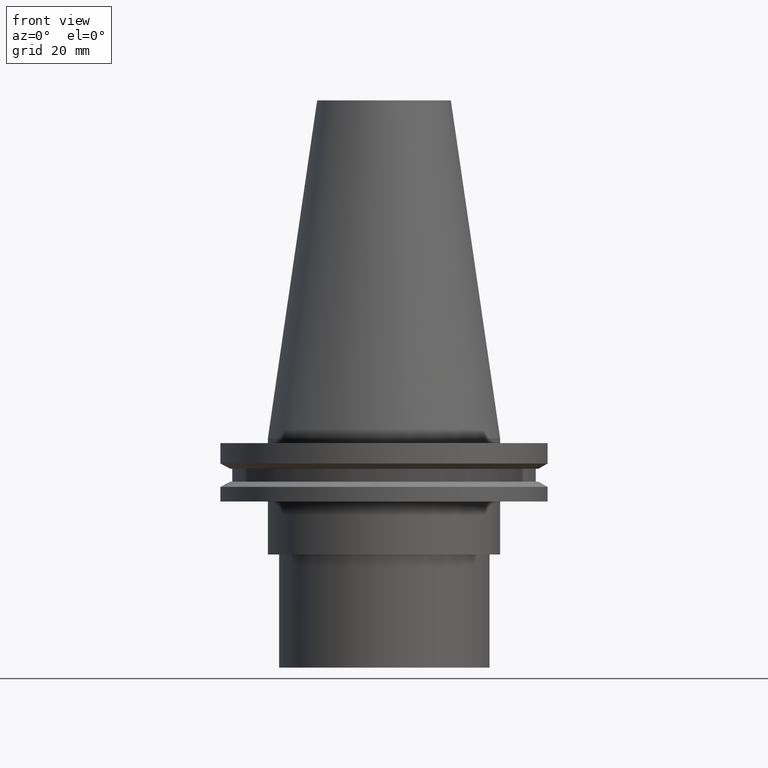
[diagram: clean part render]
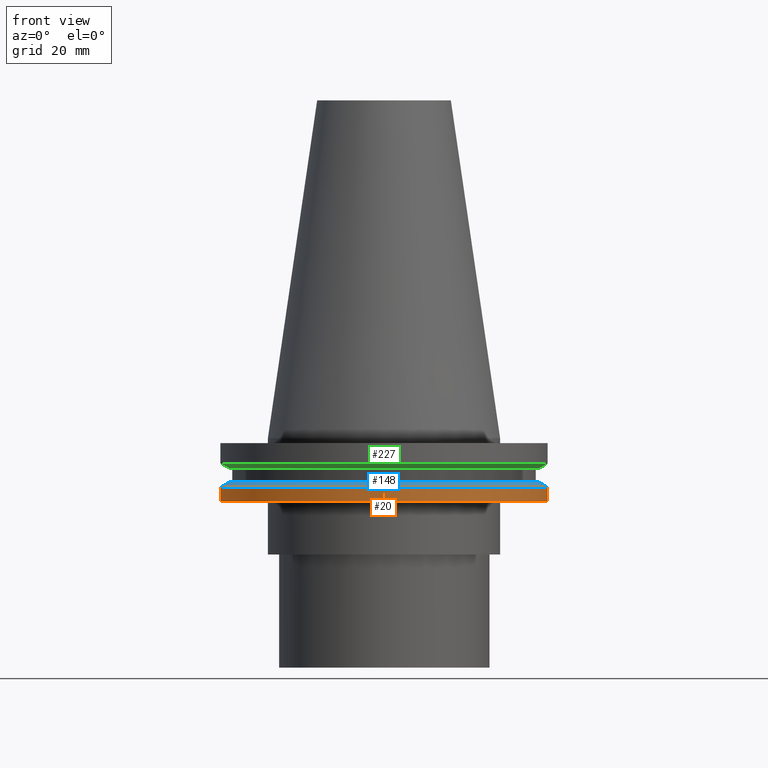
[diagram: same view with three faces highlighted in distinct colors, each labeled with its STEP entity id]
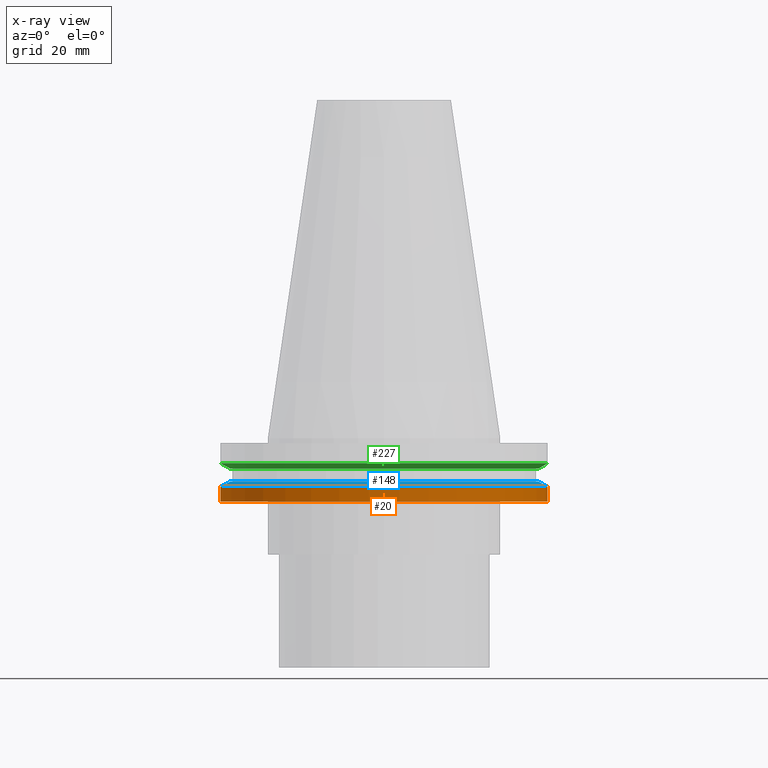
[diagram: x-ray of the same camera — body ghosted, the three highlighted faces saturated]
A machine part, front view with three faces highlighted in distinct colors.
The next image is the same camera in x-ray (body ghosted, the three faces saturated) — at least one of them is partly hidden behind the body in this view.
Their STEP definitions:

[orange] entity #20 — the highlighted cylindrical surface (bore or boss wall) has radius 49.215 mm, axis along (-0, -0, 1).
#18 = CARTESIAN_POINT ( 'NONE',  ( 0.000000000000000000, 0.000000000000000000, -14.65761014474876944 ) ) ;
#19 = DIRECTION ( 'NONE',  ( -0.000000000000000000, -0.000000000000000000, 1.000000000000000000 ) ) ;
#20 = ADVANCED_FACE ( 'NONE', ( #322, #54 ), #301, .T. ) ;
#35 = EDGE_LOOP ( 'NONE', ( #130 ) ) ;
#52 = CIRCLE ( 'NONE', #59, 49.21499999999998920 ) ;
#54 = FACE_OUTER_BOUND ( 'NONE', #166, .T. ) ;
#59 = AXIS2_PLACEMENT_3D ( 'NONE', #213, #332, #303 ) ;
#64 = EDGE_CURVE ( 'NONE', #182, #182, #133, .T. ) ;
#86 = DIRECTION ( 'NONE',  ( -0.000000000000000000, -0.000000000000000000, 1.000000000000000000 ) ) ;
#130 = ORIENTED_EDGE ( 'NONE', *, *, #64, .F. ) ;
#133 = CIRCLE ( 'NONE', #304, 49.21499999999998920 ) ;
#166 = EDGE_LOOP ( 'NONE', ( #221 ) ) ;
#173 = DIRECTION ( 'NONE',  ( 1.000000000000000000, 0.000000000000000000, 0.000000000000000000 ) ) ;
#178 = DIRECTION ( 'NONE',  ( 1.000000000000000000, 0.000000000000000000, 0.000000000000000000 ) ) ;
#182 = VERTEX_POINT ( 'NONE', #366 ) ;
#204 = CARTESIAN_POINT ( 'NONE',  ( 49.21499999999998920, 0.000000000000000000, -19.04999999999999716 ) ) ;
#213 = CARTESIAN_POINT ( 'NONE',  ( 0.000000000000000000, 0.000000000000000000, -19.04999999999999716 ) ) ;
#221 = ORIENTED_EDGE ( 'NONE', *, *, #377, .T. ) ;
#301 = CYLINDRICAL_SURFACE ( 'NONE', #382, 49.21499999999998920 ) ;
#303 = DIRECTION ( 'NONE',  ( 1.000000000000000000, 0.000000000000000000, 0.000000000000000000 ) ) ;
#304 = AXIS2_PLACEMENT_3D ( 'NONE', #18, #19, #173 ) ;
#322 = FACE_OUTER_BOUND ( 'NONE', #35, .T. ) ;
#332 = DIRECTION ( 'NONE',  ( -0.000000000000000000, -0.000000000000000000, 1.000000000000000000 ) ) ;
#354 = CARTESIAN_POINT ( 'NONE',  ( 0.000000000000000000, 0.000000000000000000, 101.5999999999999943 ) ) ;
#361 = VERTEX_POINT ( 'NONE', #204 ) ;
#366 = CARTESIAN_POINT ( 'NONE',  ( 49.21499999999998920, 0.000000000000000000, -14.65761014474876944 ) ) ;
#377 = EDGE_CURVE ( 'NONE', #361, #361, #52, .T. ) ;
#382 = AXIS2_PLACEMENT_3D ( 'NONE', #354, #86, #178 ) ;

[blue] entity #148 — the highlighted conical surface has half-angle 60 deg.
#18 = CARTESIAN_POINT ( 'NONE',  ( 0.000000000000000000, 0.000000000000000000, -14.65761014474876944 ) ) ;
#19 = DIRECTION ( 'NONE',  ( -0.000000000000000000, -0.000000000000000000, 1.000000000000000000 ) ) ;
#47 = EDGE_LOOP ( 'NONE', ( #321 ) ) ;
#64 = EDGE_CURVE ( 'NONE', #182, #182, #133, .T. ) ;
#81 = DIRECTION ( 'NONE',  ( -0.000000000000000000, -0.000000000000000000, 1.000000000000000000 ) ) ;
#104 = ORIENTED_EDGE ( 'NONE', *, *, #145, .F. ) ;
#106 = AXIS2_PLACEMENT_3D ( 'NONE', #275, #113, #392 ) ;
#113 = DIRECTION ( 'NONE',  ( 0.000000000000000000, 0.000000000000000000, -1.000000000000000000 ) ) ;
#133 = CIRCLE ( 'NONE', #304, 49.21499999999998920 ) ;
#145 = EDGE_CURVE ( 'NONE', #329, #329, #342, .T. ) ;
#148 = ADVANCED_FACE ( 'NONE', ( #271, #386 ), #258, .T. ) ;
#173 = DIRECTION ( 'NONE',  ( 1.000000000000000000, 0.000000000000000000, 0.000000000000000000 ) ) ;
#182 = VERTEX_POINT ( 'NONE', #366 ) ;
#195 = EDGE_LOOP ( 'NONE', ( #104 ) ) ;
#236 = CARTESIAN_POINT ( 'NONE',  ( 0.000000000000000000, 0.000000000000000000, -13.05499999999999794 ) ) ;
#243 = DIRECTION ( 'NONE',  ( 1.000000000000000000, 0.000000000000000000, 0.000000000000000000 ) ) ;
#258 = CONICAL_SURFACE ( 'NONE', #106, 49.21499999999998920, 1.047197551196554333 ) ;
#271 = FACE_BOUND ( 'NONE', #195, .T. ) ;
#275 = CARTESIAN_POINT ( 'NONE',  ( 0.000000000000000000, 0.000000000000000000, -14.65761014474876944 ) ) ;
#280 = AXIS2_PLACEMENT_3D ( 'NONE', #236, #81, #243 ) ;
#304 = AXIS2_PLACEMENT_3D ( 'NONE', #18, #19, #173 ) ;
#321 = ORIENTED_EDGE ( 'NONE', *, *, #64, .T. ) ;
#329 = VERTEX_POINT ( 'NONE', #336 ) ;
#336 = CARTESIAN_POINT ( 'NONE',  ( 46.43919780457007818, 0.000000000000000000, -13.05499999999999794 ) ) ;
#342 = CIRCLE ( 'NONE', #280, 46.43919780457007818 ) ;
#366 = CARTESIAN_POINT ( 'NONE',  ( 49.21499999999998920, 0.000000000000000000, -14.65761014474876944 ) ) ;
#386 = FACE_OUTER_BOUND ( 'NONE', #47, .T. ) ;
#392 = DIRECTION ( 'NONE',  ( -1.000000000000000000, 0.000000000000000000, 0.000000000000000000 ) ) ;

[green] entity #227 — the highlighted conical surface has half-angle 60 deg.
#14 = CARTESIAN_POINT ( 'NONE',  ( 0.000000000000000000, 0.000000000000000000, -9.204999999999991189 ) ) ;
#17 = AXIS2_PLACEMENT_3D ( 'NONE', #90, #144, #242 ) ;
#27 = VERTEX_POINT ( 'NONE', #141 ) ;
#34 = ORIENTED_EDGE ( 'NONE', *, *, #350, .F. ) ;
#40 = DIRECTION ( 'NONE',  ( -0.000000000000000000, -0.000000000000000000, 1.000000000000000000 ) ) ;
#90 = CARTESIAN_POINT ( 'NONE',  ( 0.000000000000000000, 0.000000000000000000, -7.602389855251287187 ) ) ;
#137 = CARTESIAN_POINT ( 'NONE',  ( 0.000000000000000000, 0.000000000000000000, -9.204999999999991189 ) ) ;
#141 = CARTESIAN_POINT ( 'NONE',  ( 49.21500000000000341, 0.000000000000000000, -7.602389855251287187 ) ) ;
#144 = DIRECTION ( 'NONE',  ( -0.000000000000000000, -0.000000000000000000, 1.000000000000000000 ) ) ;
#191 = CIRCLE ( 'NONE', #225, 46.43919780457007818 ) ;
#198 = EDGE_LOOP ( 'NONE', ( #34 ) ) ;
#199 = DIRECTION ( 'NONE',  ( 1.000000000000000000, 0.000000000000000000, 0.000000000000000000 ) ) ;
#201 = EDGE_CURVE ( 'NONE', #307, #307, #191, .T. ) ;
#223 = FACE_OUTER_BOUND ( 'NONE', #198, .T. ) ;
#225 = AXIS2_PLACEMENT_3D ( 'NONE', #14, #40, #378 ) ;
#227 = ADVANCED_FACE ( 'NONE', ( #223, #264 ), #319, .T. ) ;
#242 = DIRECTION ( 'NONE',  ( 1.000000000000000000, 0.000000000000000000, 0.000000000000000000 ) ) ;
#264 = FACE_BOUND ( 'NONE', #352, .T. ) ;
#305 = AXIS2_PLACEMENT_3D ( 'NONE', #137, #345, #199 ) ;
#307 = VERTEX_POINT ( 'NONE', #363 ) ;
#314 = CIRCLE ( 'NONE', #17, 49.21500000000000341 ) ;
#319 = CONICAL_SURFACE ( 'NONE', #305, 46.43919780457007818, 1.047197551196575205 ) ;
#345 = DIRECTION ( 'NONE',  ( -0.000000000000000000, -0.000000000000000000, 1.000000000000000000 ) ) ;
#349 = ORIENTED_EDGE ( 'NONE', *, *, #201, .T. ) ;
#350 = EDGE_CURVE ( 'NONE', #27, #27, #314, .T. ) ;
#352 = EDGE_LOOP ( 'NONE', ( #349 ) ) ;
#363 = CARTESIAN_POINT ( 'NONE',  ( 46.43919780457007818, 0.000000000000000000, -9.204999999999991189 ) ) ;
#378 = DIRECTION ( 'NONE',  ( 1.000000000000000000, 0.000000000000000000, 0.000000000000000000 ) ) ;